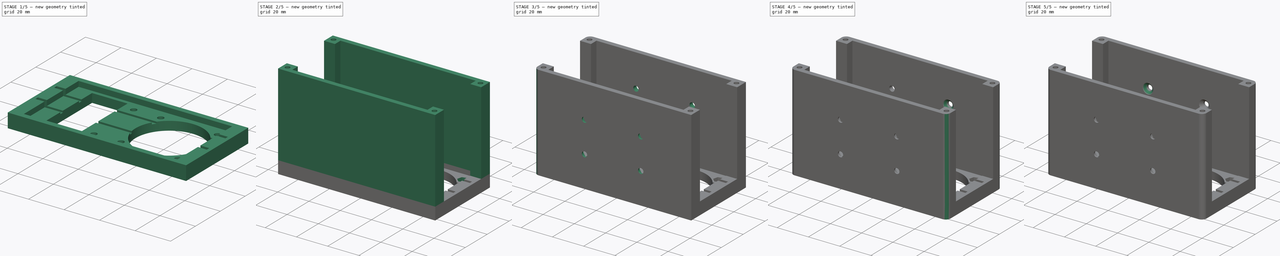
[diagram: build sequence overview — one tinted view per stage of 5, left to right]
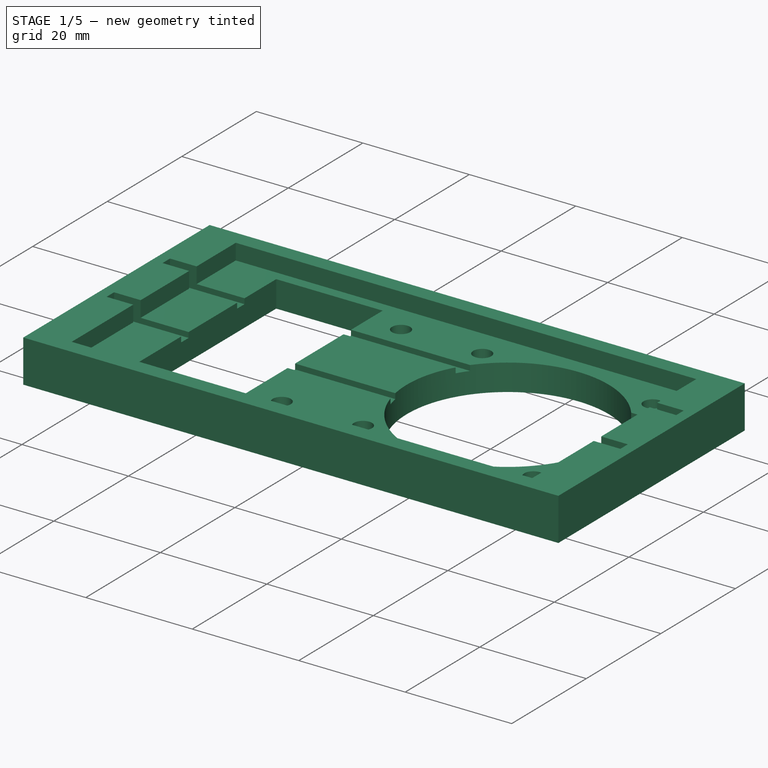
[diagram: stage 1 of 5 — iso view after this stage's code; geometry added in this stage tinted green]
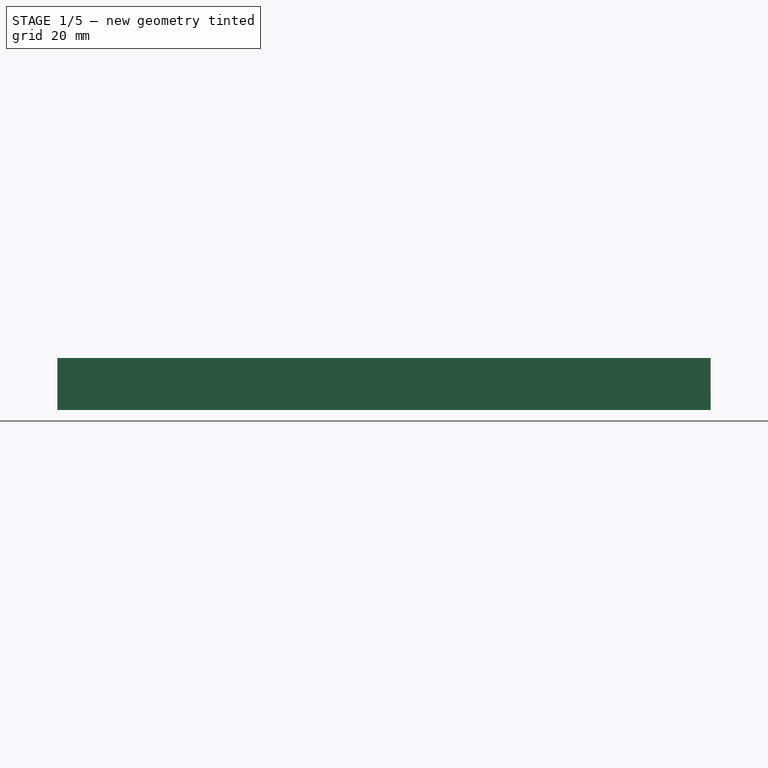
[diagram: stage 1 of 5 — front view after this stage's code; geometry added in this stage tinted green]
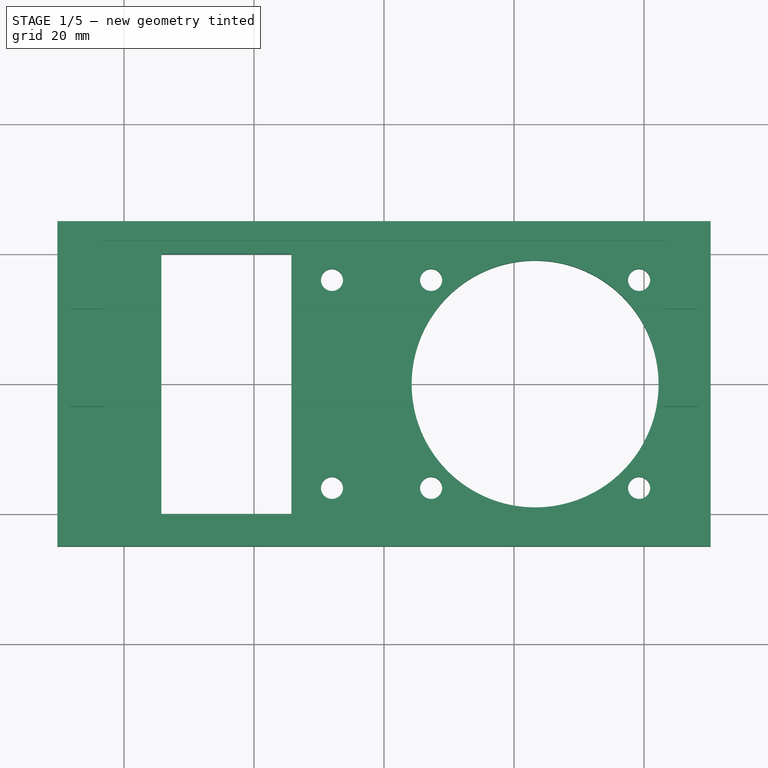
[diagram: stage 1 of 5 — top view after this stage's code; geometry added in this stage tinted green]
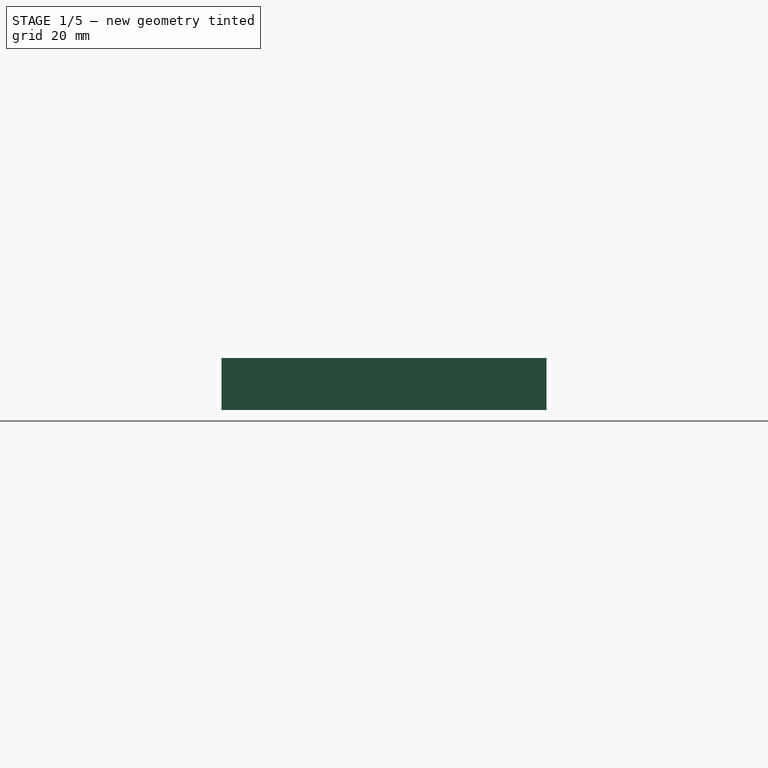
[diagram: stage 1 of 5 — right view after this stage's code; geometry added in this stage tinted green]
FCSTD DOCUMENT  (FreeCAD 0.16R6706 (Git))
Label: MotorDriverMount
License: All rights reserved
LicenseURL: http://en.wikipedia.org/wiki/All_rights_reserved
objects: Sketcher::SketchObject×9, PartDesign::Pocket×6, PartDesign::Fillet×4, PartDesign::Chamfer×4, PartDesign::Pad×2
note: 33 computed .brp shape members not serialized (recipe doc carries the construction recipe); baked Part::Feature solids carry a one-line shape summary decoded from their .brp

FEATURE [Sketcher::SketchObject] Sketch
  sketch-geometry (29):
    g0: LineSegment StartX=-50.25 StartY=25 StartZ=0 EndX=50.25 EndY=25 EndZ=0
    g1: LineSegment StartX=50.25 StartY=25 StartZ=0 EndX=50.25 EndY=-25 EndZ=0
    g2: LineSegment StartX=50.25 StartY=-25 StartZ=0 EndX=-50.25 EndY=-25 EndZ=0
    g3: LineSegment StartX=-50.25 StartY=-25 StartZ=0 EndX=-50.25 EndY=25 EndZ=0
    g4: LineSegment [constr] StartX=-48.25 StartY=12 StartZ=0 EndX=48.25 EndY=12 EndZ=0
    g5: LineSegment [constr] StartX=48.25 StartY=12 StartZ=0 EndX=48.25 EndY=10 EndZ=0
    g6: LineSegment [constr] StartX=48.25 StartY=10 StartZ=0 EndX=-48.25 EndY=10 EndZ=0
    g7: LineSegment [constr] StartX=-48.25 StartY=10 StartZ=0 EndX=-48.25 EndY=12 EndZ=0
    g8: LineSegment [constr] StartX=-48.25 StartY=-8 StartZ=0 EndX=48.25 EndY=-8 EndZ=0
    g9: LineSegment [constr] StartX=48.25 StartY=-8 StartZ=0 EndX=48.25 EndY=-10 EndZ=0
    g10: LineSegment [constr] StartX=48.25 StartY=-10 StartZ=0 EndX=-48.25 EndY=-10 EndZ=0
    g11: LineSegment [constr] StartX=-48.25 StartY=-10 StartZ=0 EndX=-48.25 EndY=-8 EndZ=0
    g12: LineSegment [constr] StartX=-48.25 StartY=10 StartZ=0 EndX=-48.25 EndY=-8 EndZ=0
    g13: LineSegment [constr] StartX=48.25 StartY=10 StartZ=0 EndX=48.25 EndY=-8 EndZ=0
    g14: Circle CenterX=23.25 CenterY=0 CenterZ=0 NormalX=0 NormalY=0 NormalZ=1 Radius=19
    g15: LineSegment StartX=-34.25 StartY=20 StartZ=0 EndX=-14.25 EndY=20 EndZ=0
    g16: LineSegment StartX=-14.25 StartY=20 StartZ=0 EndX=-14.25 EndY=-20 EndZ=0
    g17: LineSegment StartX=-14.25 StartY=-20 StartZ=0 EndX=-34.25 EndY=-20 EndZ=0
    g18: LineSegment StartX=-34.25 StartY=-20 StartZ=0 EndX=-34.25 EndY=20 EndZ=0
    g19: LineSegment [constr] StartX=7.25 StartY=16 StartZ=0 EndX=39.25 EndY=16 EndZ=0
    g20: LineSegment [constr] StartX=39.25 StartY=16 StartZ=0 EndX=39.25 EndY=-16 EndZ=0
    g21: LineSegment [constr] StartX=39.25 StartY=-16 StartZ=0 EndX=7.25 EndY=-16 EndZ=0
    g22: LineSegment [constr] StartX=7.25 StartY=-16 StartZ=0 EndX=7.25 EndY=16 EndZ=0
    g23: Circle CenterX=7.25 CenterY=16 CenterZ=0 NormalX=0 NormalY=0 NormalZ=1 Radius=1.7
    g24: Circle CenterX=39.25 CenterY=16 CenterZ=0 NormalX=0 NormalY=0 NormalZ=1 Radius=1.7
    g25: Circle CenterX=39.25 CenterY=-16 CenterZ=0 NormalX=0 NormalY=0 NormalZ=1 Radius=1.7
    g26: Circle CenterX=7.25 CenterY=-16 CenterZ=0 NormalX=0 NormalY=0 NormalZ=1 Radius=1.7
    g27: Circle CenterX=-8 CenterY=16 CenterZ=0 NormalX=0 NormalY=0 NormalZ=1 Radius=1.7
    g28: Circle CenterX=-8 CenterY=-16 CenterZ=0 NormalX=0 NormalY=0 NormalZ=1 Radius=1.7
  constraints (79):
    c: Coincident(g0,g1)
    c: Coincident(g1,g2)
    c: Coincident(g2,g3)
    c: Coincident(g3,g0)
    c: Horizontal(g0)
    c: Horizontal(g2)
    c: Vertical(g1)
    c: Vertical(g3)
    c: Coincident(g4,g5)
    c: Coincident(g5,g6)
    c: Coincident(g6,g7)
    c: Coincident(g7,g4)
    c: Horizontal(g4)
    c: Horizontal(g6)
    c: Vertical(g5)
    c: Vertical(g7)
    c: Coincident(g8,g9)
    c: Coincident(g9,g10)
    c: Coincident(g10,g11)
    c: Coincident(g11,g8)
    c: Horizontal(g8)
    c: Horizontal(g10)
    c: Vertical(g9)
    c: Vertical(g11)
    c: Symmetric(g0,g2,g-1)
    c: DistanceY(g1,g0) = 50
    c: Symmetric(g4,g4,g-2)
    c: DistanceX(g4,g4) = 96.5
    c: DistanceX(g4,g0) = 2
    c: Coincident(g12,g6)
    c: Vertical(g12)
    c: Coincident(g8,g12)
    c: Coincident(g13,g5)
    c: Coincident(g13,g8)
    c: Vertical(g13)
    c: DistanceY(g6,g4) = 2
    c: DistanceY(g10,g8) = 2
    c: DistanceY(g8,g5) = 18
    c: PointOnObject(g14,g-1)
    c: Radius(g14) = 19
    c: DistanceX(g14,g0) = 27
    c: Coincident(g15,g16)
    c: Coincident(g16,g17)
    c: Coincident(g17,g18)
    c: Coincident(g18,g15)
    c: Horizontal(g15)
    c: Horizontal(g17)
    c: Vertical(g16)
    c: Vertical(g18)
    c: Symmetric(g15,g17,g-1)
    c: DistanceX(g4,g15) = 14
    c: DistanceY(g17,g15) = 40
    c: DistanceX(g15,g15) = 20
    c: Coincident(g19,g20)
    c: Coincident(g20,g21)
    c: Coincident(g21,g22)
    c: Coincident(g22,g19)
    c: Horizontal(g19)
    c: Horizontal(g21)
    c: Vertical(g20)
    c: Vertical(g22)
    c: Symmetric(g20,g19,g14)
    c: DistanceX(g19,g19) = 32
    c: Coincident(g23,g19)
    c: Coincident(g24,g19)
    c: Radius(g26) = 1.7
    c: Equal(g26,g25)
    c: Equal(g26,g24)
    c: Equal(g26,g23)
    c: Coincident(g26,g21)
    c: Coincident(g25,g20)
    c: Equal(g22,g19)
    c: DistanceX(g2,g1) = 100.5
    c: DistanceY(g-1,g6) = 10
    c: Radius(g28) = 1.7
    c: Equal(g28,g27)
    c: Symmetric(g28,g27,g-1)
    c: DistanceY(g28,g27) = 32
    c: DistanceX(g27,g-1) = 8
FEATURE [PartDesign::Pad] Pad
  Length = 8
  Length2 = 100
  Sketch = -> Sketch
  Type = 0
FEATURE [Sketcher::SketchObject] Sketch001
  Placement = pos=(0,0,8) rot=(0,0,1;0rad)
  Support = -> Pad [Face17]
  sketch-geometry (4):
    g0: LineSegment StartX=-43.25 StartY=22 StartZ=0 EndX=43.25 EndY=22 EndZ=0
    g1: LineSegment StartX=43.25 StartY=22 StartZ=0 EndX=43.25 EndY=-22 EndZ=0
    g2: LineSegment StartX=43.25 StartY=-22 StartZ=0 EndX=-43.25 EndY=-22 EndZ=0
    g3: LineSegment StartX=-43.25 StartY=-22 StartZ=0 EndX=-43.25 EndY=22 EndZ=0
  constraints (11):
    c: Coincident(g0,g1)
    c: Coincident(g1,g2)
    c: Coincident(g2,g3)
    c: Coincident(g3,g0)
    c: Horizontal(g0)
    c: Horizontal(g2)
    c: Vertical(g1)
    c: Vertical(g3)
    c: Symmetric(g0,g1,g-1)
    c: DistanceY(g2,g0) = 44
    c: DistanceX(g0,g0) = 86.5
FEATURE [PartDesign::Pocket] Pocket
  Length = 3
  Sketch = -> Sketch001
  Type = 0
FEATURE [Sketcher::SketchObject] Sketch002  label="BoardSlots"
  Placement = pos=(0,0,8) rot=(0,0,1;0rad)
  Support = -> Pocket [Face5]
  sketch-geometry (10):
    g0: LineSegment StartX=-48.25 StartY=11.5 StartZ=0 EndX=48.25 EndY=11.5 EndZ=0
    g1: LineSegment StartX=48.25 StartY=11.5 StartZ=0 EndX=48.25 EndY=9.5 EndZ=0
    g2: LineSegment StartX=48.25 StartY=9.5 StartZ=0 EndX=-48.25 EndY=9.5 EndZ=0
    g3: LineSegment StartX=-48.25 StartY=9.5 StartZ=0 EndX=-48.25 EndY=11.5 EndZ=0
    g4: LineSegment StartX=-48.25 StartY=-3.5 StartZ=0 EndX=48.25 EndY=-3.5 EndZ=0
    g5: LineSegment StartX=48.25 StartY=-3.5 StartZ=0 EndX=48.25 EndY=-5.5 EndZ=0
    g6: LineSegment StartX=48.25 StartY=-5.5 StartZ=0 EndX=-48.25 EndY=-5.5 EndZ=0
    g7: LineSegment StartX=-48.25 StartY=-5.5 StartZ=0 EndX=-48.25 EndY=-3.5 EndZ=0
    g8: LineSegment [constr] StartX=-48.25 StartY=9.5 StartZ=0 EndX=-48.25 EndY=-3.5 EndZ=0
    g9: LineSegment [constr] StartX=48.25 StartY=9.5 StartZ=0 EndX=48.25 EndY=-3.5 EndZ=0
  constraints (28):
    c: Coincident(g0,g1)
    c: Coincident(g1,g2)
    c: Coincident(g2,g3)
    c: Coincident(g3,g0)
    c: Horizontal(g0)
    c: Horizontal(g2)
    c: Vertical(g1)
    c: Vertical(g3)
    c: Coincident(g4,g5)
    c: Coincident(g5,g6)
    c: Coincident(g6,g7)
    c: Coincident(g7,g4)
    c: Horizontal(g4)
    c: Horizontal(g6)
    c: Vertical(g5)
    c: Vertical(g7)
    c: Symmetric(g0,g0,g-2)
    c: DistanceY(g1,g0) = 2
    c: DistanceX(g0,g0) = 96.5
    c: DistanceY(g5,g4) = 2
    c: Coincident(g8,g2)
    c: Coincident(g8,g4)
    c: Vertical(g8)
    c: Coincident(g9,g1)
    c: Coincident(g9,g4)
    c: Vertical(g9)
    c: DistanceY(g4,g0) = 15
    c: DistanceY(g-1,g2) = 9.5
FEATURE [PartDesign::Pocket] Pocket001
  Length = 4
  Sketch = -> Sketch002
  Type = 0
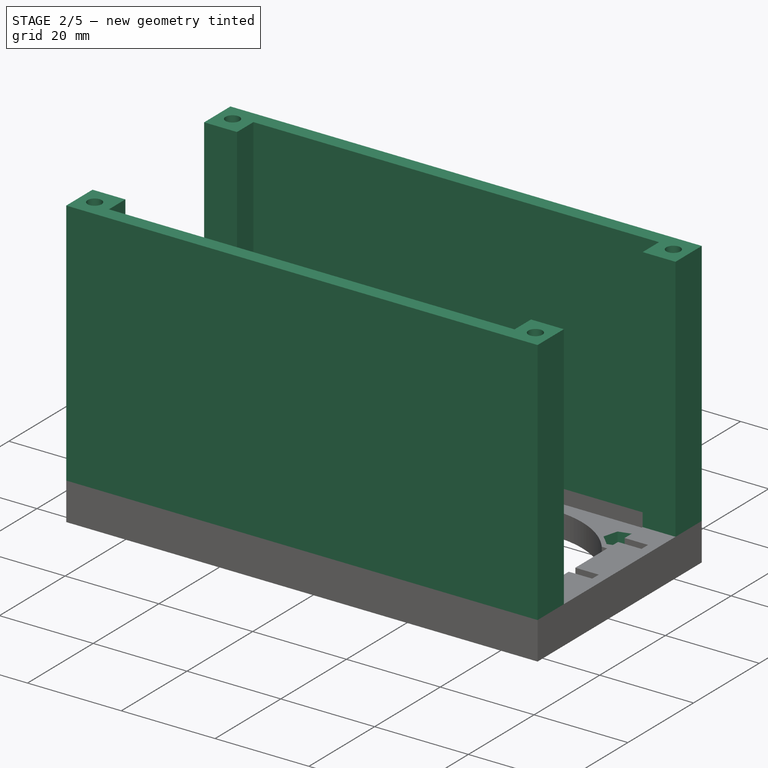
[diagram: stage 2 of 5 — iso view after this stage's code; geometry added in this stage tinted green]
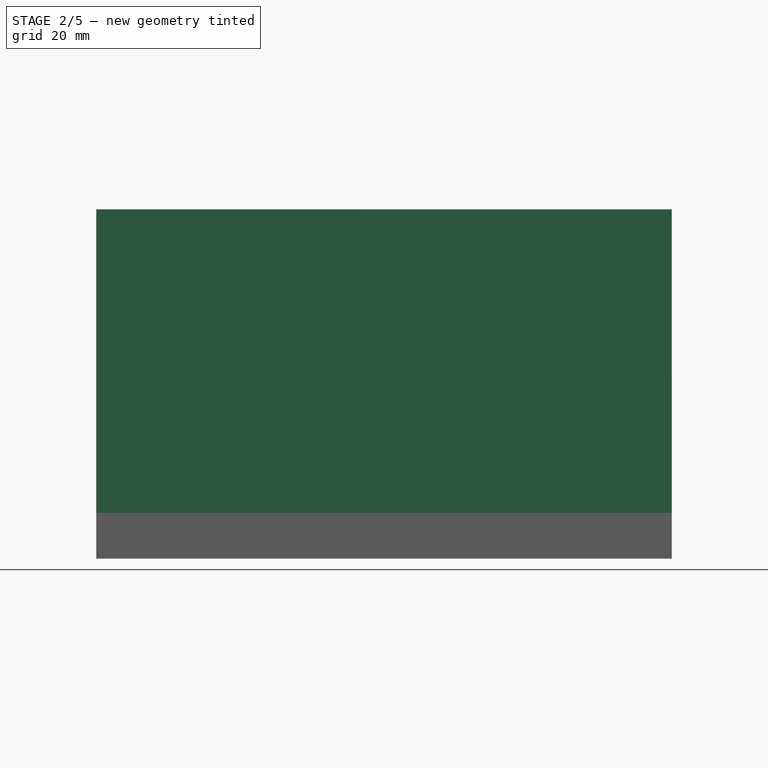
[diagram: stage 2 of 5 — front view after this stage's code; geometry added in this stage tinted green]
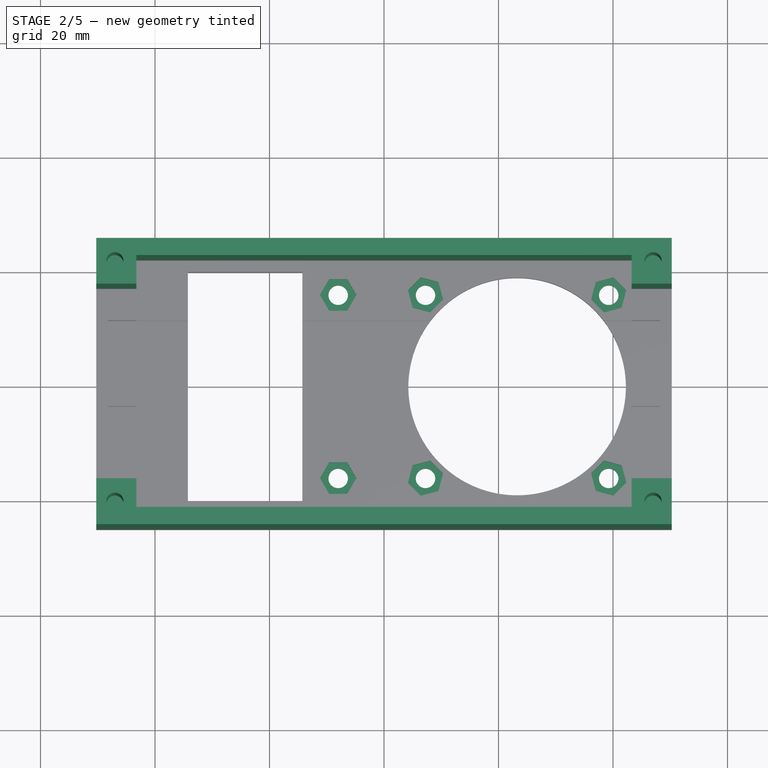
[diagram: stage 2 of 5 — top view after this stage's code; geometry added in this stage tinted green]
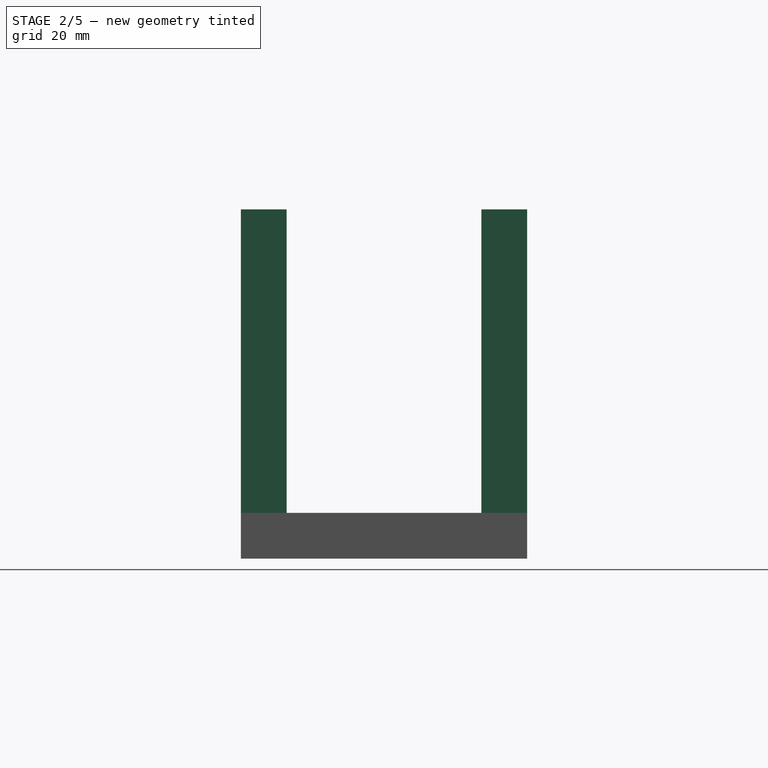
[diagram: stage 2 of 5 — right view after this stage's code; geometry added in this stage tinted green]
FEATURE [Sketcher::SketchObject] Sketch003
  Placement = pos=(0,0,5) rot=(0,0,1;0rad)
  Support = -> Pocket001 [Face38]
  sketch-geometry (47):
    g0: LineSegment [constr] StartX=7.25 StartY=16 StartZ=0 EndX=39.25 EndY=16 EndZ=0
    g1: LineSegment [constr] StartX=39.25 StartY=16 StartZ=0 EndX=39.25 EndY=-16 EndZ=0
    g2: LineSegment [constr] StartX=39.25 StartY=-16 StartZ=0 EndX=7.25 EndY=-16 EndZ=0
    g3: LineSegment [constr] StartX=7.25 StartY=-16 StartZ=0 EndX=7.25 EndY=16 EndZ=0
    g4: LineSegment StartX=6.42814 StartY=19.0672 StartZ=0 EndX=4.18277 EndY=16.8219 EndZ=0
    g5: LineSegment StartX=4.18277 StartY=16.8219 StartZ=0 EndX=5.00463 EndY=13.7546 EndZ=0
    g6: LineSegment StartX=5.00463 StartY=13.7546 StartZ=0 EndX=8.07186 EndY=12.9328 EndZ=0
    g7: LineSegment StartX=8.07186 StartY=12.9328 StartZ=0 EndX=10.3172 EndY=15.1781 EndZ=0
    g8: LineSegment StartX=10.3172 StartY=15.1781 StartZ=0 EndX=9.49537 EndY=18.2454 EndZ=0
    g9: LineSegment StartX=9.49537 StartY=18.2454 StartZ=0 EndX=6.42814 EndY=19.0672 EndZ=0
    g10: Circle [constr] CenterX=7.25 CenterY=16 CenterZ=0 NormalX=0 NormalY=0 NormalZ=1 Radius=3.17543
    g11: LineSegment StartX=40.0719 StartY=19.0672 StartZ=0 EndX=37.0046 EndY=18.2454 EndZ=0
    g12: LineSegment StartX=37.0046 StartY=18.2454 StartZ=0 EndX=36.1828 EndY=15.1781 EndZ=0
    g13: LineSegment StartX=36.1828 StartY=15.1781 StartZ=0 EndX=38.4281 EndY=12.9328 EndZ=0
    g14: LineSegment StartX=38.4281 StartY=12.9328 StartZ=0 EndX=41.4954 EndY=13.7546 EndZ=0
    g15: LineSegment StartX=41.4954 StartY=13.7546 StartZ=0 EndX=42.3172 EndY=16.8219 EndZ=0
    g16: LineSegment StartX=42.3172 StartY=16.8219 StartZ=0 EndX=40.0719 EndY=19.0672 EndZ=0
    g17: Circle [constr] CenterX=39.25 CenterY=16 CenterZ=0 NormalX=0 NormalY=0 NormalZ=1 Radius=3.17543
    g18: LineSegment StartX=5.00463 StartY=-13.7546 StartZ=0 EndX=4.18277 EndY=-16.8219 EndZ=0
    g19: LineSegment StartX=4.18277 StartY=-16.8219 StartZ=0 EndX=6.42814 EndY=-19.0672 EndZ=0
    g20: LineSegment StartX=6.42814 StartY=-19.0672 StartZ=0 EndX=9.49537 EndY=-18.2454 EndZ=0
    g21: LineSegment StartX=9.49537 StartY=-18.2454 StartZ=0 EndX=10.3172 EndY=-15.1781 EndZ=0
    g22: LineSegment StartX=10.3172 StartY=-15.1781 StartZ=0 EndX=8.07186 EndY=-12.9328 EndZ=0
    g23: LineSegment StartX=8.07186 StartY=-12.9328 StartZ=0 EndX=5.00463 EndY=-13.7546 EndZ=0
    g24: Circle [constr] CenterX=7.25 CenterY=-16 CenterZ=0 NormalX=0 NormalY=0 NormalZ=1 Radius=3.17543
    g25: LineSegment StartX=36.1828 StartY=-15.1781 StartZ=0 EndX=37.0046 EndY=-18.2454 EndZ=0
    g26: LineSegment StartX=37.0046 StartY=-18.2454 StartZ=0 EndX=40.0719 EndY=-19.0672 EndZ=0
    g27: LineSegment StartX=40.0719 StartY=-19.0672 StartZ=0 EndX=42.3172 EndY=-16.8219 EndZ=0
    g28: LineSegment StartX=42.3172 StartY=-16.8219 StartZ=0 EndX=41.4954 EndY=-13.7546 EndZ=0
    g29: LineSegment StartX=41.4954 StartY=-13.7546 StartZ=0 EndX=38.4281 EndY=-12.9328 EndZ=0
    g30: LineSegment StartX=38.4281 StartY=-12.9328 StartZ=0 EndX=36.1828 EndY=-15.1781 EndZ=0
    g31: Circle [constr] CenterX=39.25 CenterY=-16 CenterZ=0 NormalX=0 NormalY=0 NormalZ=1 Radius=3.17543
    g32: LineSegment [constr] StartX=7.25 StartY=16 StartZ=0 EndX=39.25 EndY=-16 EndZ=0
    g33: LineSegment StartX=-9.58771 StartY=18.75 StartZ=0 EndX=-11.1754 EndY=16 EndZ=0
    g34: LineSegment StartX=-11.1754 StartY=16 StartZ=0 EndX=-9.58771 EndY=13.25 EndZ=0
    g35: LineSegment StartX=-9.58771 StartY=13.25 StartZ=0 EndX=-6.41229 EndY=13.25 EndZ=0
    g36: LineSegment StartX=-6.41229 StartY=13.25 StartZ=0 EndX=-4.82457 EndY=16 EndZ=0
    g37: LineSegment StartX=-4.82457 StartY=16 StartZ=0 EndX=-6.41229 EndY=18.75 EndZ=0
    g38: LineSegment StartX=-6.41229 StartY=18.75 StartZ=0 EndX=-9.58771 EndY=18.75 EndZ=0
    g39: Circle [constr] CenterX=-8 CenterY=16 CenterZ=0 NormalX=0 NormalY=0 NormalZ=1 Radius=3.17543
    g40: LineSegment StartX=-9.58771 StartY=-13.25 StartZ=0 EndX=-11.1754 EndY=-16 EndZ=0
    g41: LineSegment StartX=-11.1754 StartY=-16 StartZ=0 EndX=-9.58771 EndY=-18.75 EndZ=0
    g42: LineSegment StartX=-9.58771 StartY=-18.75 StartZ=0 EndX=-6.41229 EndY=-18.75 EndZ=0
    g43: LineSegment StartX=-6.41229 StartY=-18.75 StartZ=0 EndX=-4.82457 EndY=-16 EndZ=0
    g44: LineSegment StartX=-4.82457 StartY=-16 StartZ=0 EndX=-6.41229 EndY=-13.25 EndZ=0
    g45: LineSegment StartX=-6.41229 StartY=-13.25 StartZ=0 EndX=-9.58771 EndY=-13.25 EndZ=0
    g46: Circle [constr] CenterX=-8 CenterY=-16 CenterZ=0 NormalX=0 NormalY=0 NormalZ=1 Radius=3.17543
  constraints (111):
    c: Coincident(g0,g1)
    c: Coincident(g1,g2)
    c: Coincident(g2,g3)
    c: Coincident(g3,g0)
    c: Horizontal(g0)
    c: Horizontal(g2)
    c: Vertical(g1)
    c: Vertical(g3)
    c: Symmetric(g2,g0,g-1)
    c: DistanceY(g1,g0) = 32
    c: Equal(g1,g0)
    c: Coincident(g4,g5)
    c: Coincident(g5,g6)
    c: Coincident(g6,g7)
    c: Coincident(g7,g8)
    c: Coincident(g8,g9)
    c: Coincident(g9,g4)
    c: Equal(g4, g5-g9) x5
    c: PointOnObject(g4,g10)
    c: PointOnObject(g5,g10)
    c: PointOnObject(g6,g10)
    c: PointOnObject(g7,g10)
    c: PointOnObject(g8,g10)
    c: PointOnObject(g9,g10)
    c: Coincident(g10,g0)
    c: Coincident(g11,g12)
    c: Coincident(g12,g13)
    c: Coincident(g13,g14)
    c: Coincident(g14,g15)
    c: Coincident(g15,g16)
    c: Coincident(g16,g11)
    c: Equal(g11, g12-g16) x5
    c: PointOnObject(g11,g17)
    c: PointOnObject(g12,g17)
    c: PointOnObject(g13,g17)
    c: PointOnObject(g14,g17)
    c: PointOnObject(g15,g17)
    c: PointOnObject(g16,g17)
    c: Coincident(g17,g0)
    c: Coincident(g18,g19)
    c: Coincident(g19,g20)
    c: Coincident(g20,g21)
    c: Coincident(g21,g22)
    c: Coincident(g22,g23)
    c: Coincident(g23,g18)
    c: Equal(g18, g19-g23) x5
    c: PointOnObject(g18,g24)
    c: PointOnObject(g19,g24)
    c: PointOnObject(g20,g24)
    c: PointOnObject(g21,g24)
    c: PointOnObject(g22,g24)
    c: PointOnObject(g23,g24)
    c: Coincident(g24,g2)
    c: Coincident(g25,g26)
    c: Coincident(g26,g27)
    c: Coincident(g27,g28)
    c: Coincident(g28,g29)
    c: Coincident(g29,g30)
    c: Coincident(g30,g25)
    c: Equal(g25, g26-g30) x5
    c: PointOnObject(g25,g31)
    c: PointOnObject(g26,g31)
    c: PointOnObject(g27,g31)
    c: PointOnObject(g28,g31)
    c: PointOnObject(g29,g31)
    c: PointOnObject(g30,g31)
    c: Coincident(g31,g1)
    c: Distance(g5,g4) = 5.5
    c: Equal(g10,g17)
    c: Equal(g17,g31)
    c: Equal(g31,g24)
    c: Coincident(g1,g32)
    c: Perpendicular(g32,g30)
    c: Perpendicular(g32,g7)
    c: Parallel(g22,g32)
    c: Parallel(g32,g13)
    c: Coincident(g32,g0)
    c: DistanceX(g-1,g0) = 7.25
    c: Coincident(g33,g34)
    c: Coincident(g34,g35)
    c: Coincident(g35,g36)
    c: Coincident(g36,g37)
    c: Coincident(g37,g38)
    c: Coincident(g38,g33)
    c: Equal(g33, g34-g38) x5
    c: PointOnObject(g33,g39)
    c: PointOnObject(g34,g39)
    c: PointOnObject(g35,g39)
    c: PointOnObject(g36,g39)
    c: PointOnObject(g37,g39)
    c: PointOnObject(g38,g39)
    c: Coincident(g40,g41)
    c: Coincident(g41,g42)
    c: Coincident(g42,g43)
    c: Coincident(g43,g44)
    c: Coincident(g44,g45)
    c: Coincident(g45,g40)
    c: Equal(g40, g41-g45) x5
    c: PointOnObject(g40,g46)
    c: PointOnObject(g41,g46)
    c: PointOnObject(g42,g46)
    c: PointOnObject(g43,g46)
    c: PointOnObject(g44,g46)
    c: PointOnObject(g45,g46)
    c: Symmetric(g46,g39,g-1)
    c: Horizontal(g35)
    c: Horizontal(g45)
    c: DistanceX(g39,g-1) = 8
    c: Equal(g39,g46)
    c: Equal(g46,g10)
    c: DistanceY(g46,g39) = 32
FEATURE [PartDesign::Pocket] Pocket002
  Length = 2.5
  Sketch = -> Sketch003
  Type = 0
FEATURE [Sketcher::SketchObject] Sketch004
  Placement = pos=(0,0,8) rot=(0,0,1;0rad)
  Support = -> Pocket002 [Face5]
  sketch-geometry (18):
    g0: LineSegment StartX=-50.25 StartY=25 StartZ=0 EndX=50.25 EndY=25 EndZ=0
    g1: LineSegment StartX=50.25 StartY=25 StartZ=0 EndX=50.25 EndY=17 EndZ=0
    g2: LineSegment StartX=-50.25 StartY=17 StartZ=0 EndX=-50.25 EndY=25 EndZ=0
    g3: LineSegment StartX=50.25 StartY=-17 StartZ=0 EndX=50.25 EndY=-25 EndZ=0
    g4: LineSegment StartX=50.25 StartY=-25 StartZ=0 EndX=-50.25 EndY=-25 EndZ=0
    g5: LineSegment StartX=-50.25 StartY=-25 StartZ=0 EndX=-50.25 EndY=-17 EndZ=0
    g6: LineSegment [constr] StartX=-50.25 StartY=17 StartZ=0 EndX=-50.25 EndY=-17 EndZ=0
    g7: LineSegment [constr] StartX=50.25 StartY=17 StartZ=0 EndX=50.25 EndY=-17 EndZ=0
    g8: LineSegment StartX=-50.25 StartY=17 StartZ=0 EndX=-43.25 EndY=17 EndZ=0
    g9: LineSegment StartX=-43.25 StartY=17 StartZ=0 EndX=-43.25 EndY=22 EndZ=0
    g10: LineSegment StartX=-43.25 StartY=22 StartZ=0 EndX=43.25 EndY=22 EndZ=0
    g11: LineSegment StartX=50.25 StartY=17 StartZ=0 EndX=43.25 EndY=17 EndZ=0
    g12: LineSegment StartX=43.25 StartY=22 StartZ=0 EndX=43.25 EndY=17 EndZ=0
    g13: LineSegment StartX=-50.25 StartY=-17 StartZ=0 EndX=-43.25 EndY=-17 EndZ=0
    g14: LineSegment StartX=-43.25 StartY=-17 StartZ=0 EndX=-43.25 EndY=-22 EndZ=0
    g15: LineSegment StartX=-43.25 StartY=-22 StartZ=0 EndX=43.25 EndY=-22 EndZ=0
    g16: LineSegment StartX=43.25 StartY=-22 StartZ=0 EndX=43.25 EndY=-17 EndZ=0
    g17: LineSegment StartX=43.25 StartY=-17 StartZ=0 EndX=50.25 EndY=-17 EndZ=0
  constraints (48):
    c: Coincident(g0,g1)
    c: Coincident(g2,g0)
    c: Horizontal(g0)
    c: Vertical(g1)
    c: Vertical(g2)
    c: Coincident(g3,g4)
    c: Coincident(g4,g5)
    c: Horizontal(g4)
    c: Vertical(g3)
    c: Vertical(g5)
    c: Vertical(g6)
    c: Coincident(g7,g1)
    c: Vertical(g7)
    c: Equal(g5,g2)
    c: DistanceX(g0,g0) = 100.5
    c: Symmetric(g4,g0,g-1)
    c: DistanceY(g3,g0) = 50
    c: Coincident(g6,g5)
    c: Coincident(g2,g6)
    c: Coincident(g7,g3)
    c: Horizontal(g8)
    c: Coincident(g9,g8)
    c: Vertical(g9)
    c: Coincident(g10,g9)
    c: Horizontal(g10)
    c: Coincident(g11,g1)
    c: Horizontal(g11)
    c: Coincident(g12,g11)
    c: Vertical(g12)
    c: Coincident(g12,g10)
    c: DistanceY(g9,g0) = 3
    c: DistanceX(g2,g8) = 7
    c: DistanceY(g2,g0) = 8
    c: Symmetric(g11,g8,g-2)
    c: Coincident(g5,g13)
    c: Horizontal(g13)
    c: Coincident(g13,g14)
    c: Vertical(g14)
    c: Coincident(g14,g15)
    c: Horizontal(g15)
    c: Coincident(g15,g16)
    c: Vertical(g16)
    c: Coincident(g16,g17)
    c: Horizontal(g17)
    c: Coincident(g3,g17)
    c: Symmetric(g16,g11,g-1)
    c: Symmetric(g14,g9,g-1)
    c: Coincident(g8,g2)
FEATURE [PartDesign::Pad] Pad001
  Length = 53
  Length2 = 100
  Sketch = -> Sketch004
  Type = 0
FEATURE [Sketcher::SketchObject] Sketch005
  Placement = pos=(0,0,61) rot=(0,0,1;0rad)
  Support = -> Pad001 [Face54]
  sketch-geometry (8):
    g0: Circle CenterX=-47 CenterY=21 CenterZ=0 NormalX=0 NormalY=0 NormalZ=1 Radius=1.5
    g1: LineSegment [constr] StartX=-47 StartY=21 StartZ=0 EndX=47 EndY=21 EndZ=0
    g2: LineSegment [constr] StartX=47 StartY=21 StartZ=0 EndX=47 EndY=-21 EndZ=0
    g3: LineSegment [constr] StartX=47 StartY=-21 StartZ=0 EndX=-47 EndY=-21 EndZ=0
    g4: LineSegment [constr] StartX=-47 StartY=-21 StartZ=0 EndX=-47 EndY=21 EndZ=0
    g5: Circle CenterX=47 CenterY=21 CenterZ=0 NormalX=0 NormalY=0 NormalZ=1 Radius=1.5
    g6: Circle CenterX=47 CenterY=-21 CenterZ=0 NormalX=0 NormalY=0 NormalZ=1 Radius=1.5
    g7: Circle CenterX=-47 CenterY=-21 CenterZ=0 NormalX=0 NormalY=0 NormalZ=1 Radius=1.5
  constraints (19):
    c: Coincident(g1,g2)
    c: Coincident(g2,g3)
    c: Coincident(g3,g4)
    c: Coincident(g4,g1)
    c: Horizontal(g1)
    c: Horizontal(g3)
    c: Vertical(g2)
    c: Vertical(g4)
    c: Coincident(g1,g0)
    c: Symmetric(g0,g2,g-1)
    c: Coincident(g5,g1)
    c: Coincident(g6,g2)
    c: Coincident(g7,g3)
    c: Radius(g5) = 1.5
    c: Equal(g5,g6)
    c: Equal(g5,g7)
    c: Equal(g5,g0)
    c: DistanceY(g3,g0) = 42
    c: DistanceX(g0,g1) = 94
FEATURE [PartDesign::Pocket] Pocket003
  Length = 30
  Sketch = -> Sketch005
  Type = 0
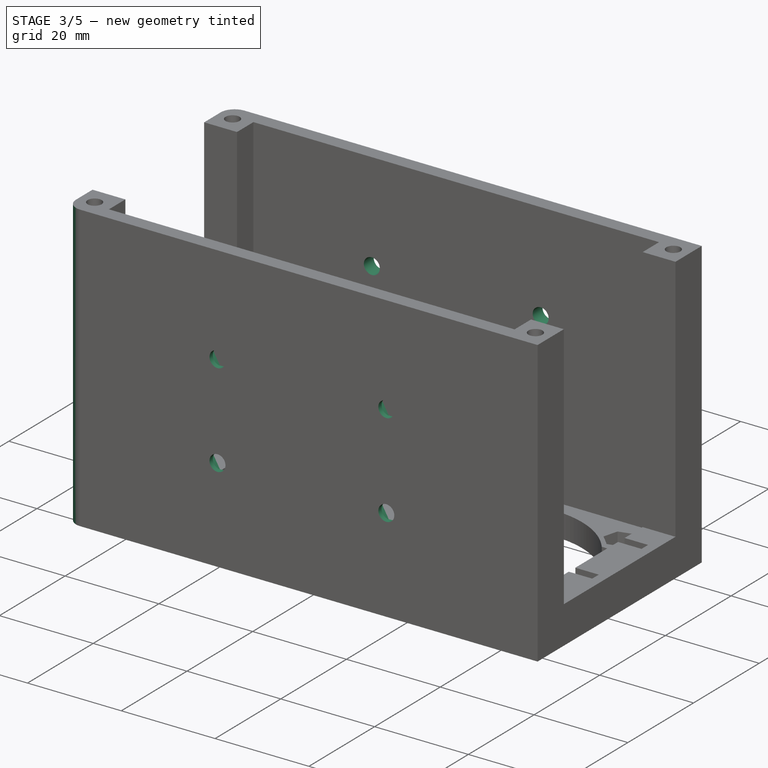
[diagram: stage 3 of 5 — iso view after this stage's code; geometry added in this stage tinted green]
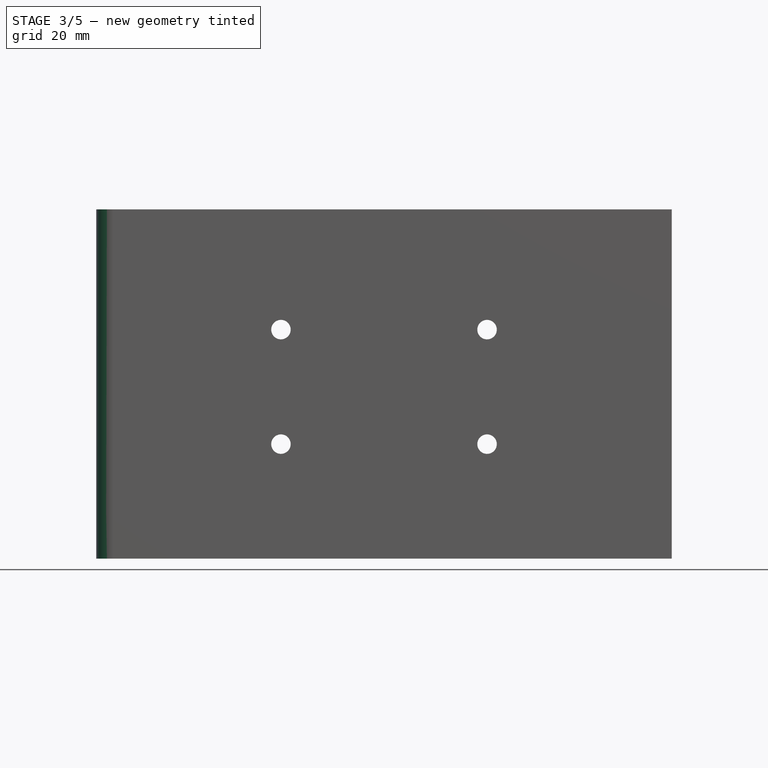
[diagram: stage 3 of 5 — front view after this stage's code; geometry added in this stage tinted green]
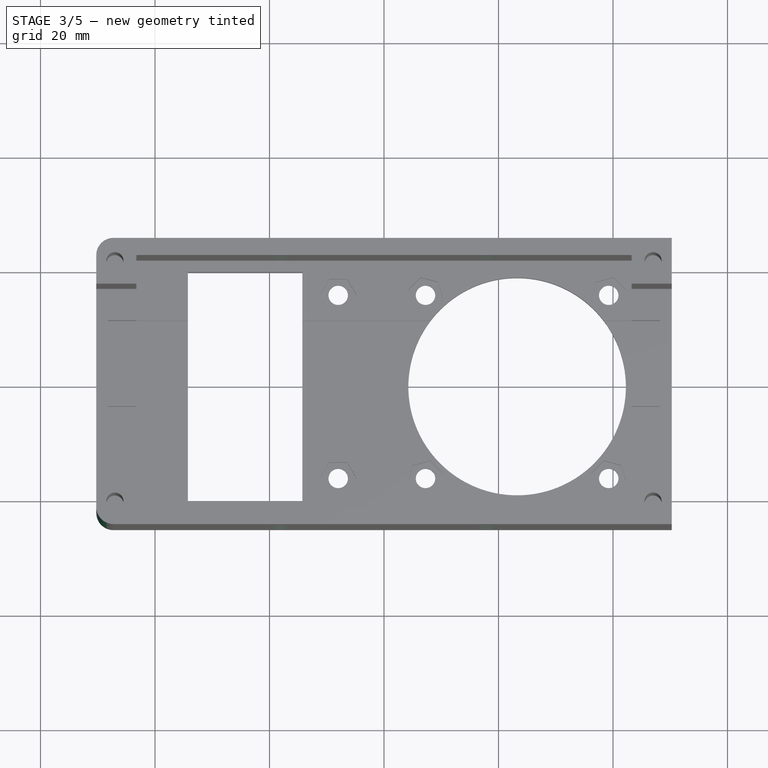
[diagram: stage 3 of 5 — top view after this stage's code; geometry added in this stage tinted green]
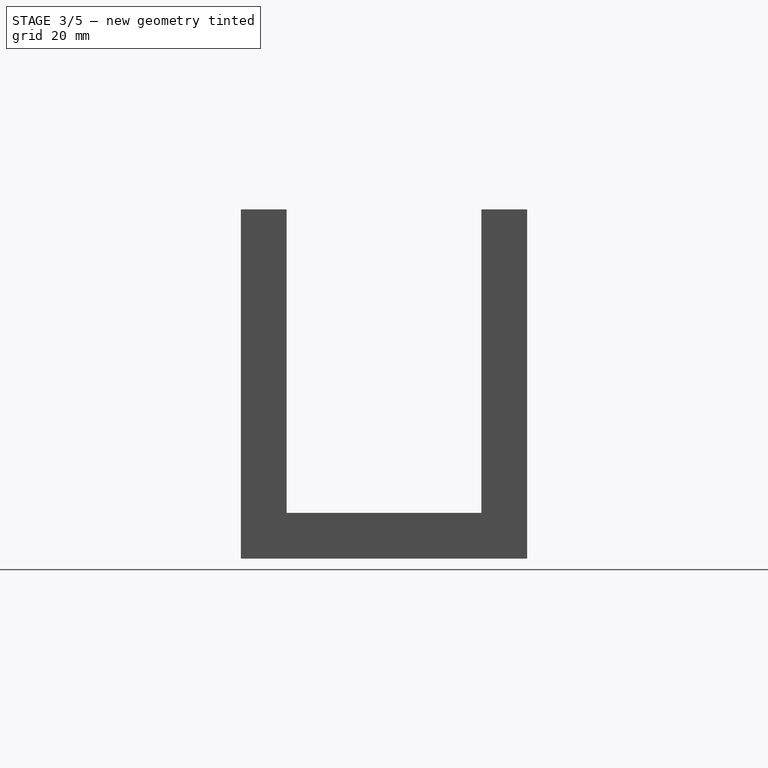
[diagram: stage 3 of 5 — right view after this stage's code; geometry added in this stage tinted green]
FEATURE [Sketcher::SketchObject] Sketch006
  Placement = pos=(0,25,0) rot=(0,0.707107,0.707107;3.14159rad)
  Support = -> Pocket003 [Face2]
  sketch-geometry (5):
    g0: Circle CenterX=-18 CenterY=20 CenterZ=0 NormalX=0 NormalY=0 NormalZ=1 Radius=1.7
    g1: Circle CenterX=18 CenterY=20 CenterZ=0 NormalX=0 NormalY=0 NormalZ=1 Radius=1.7
    g2: Circle CenterX=-18 CenterY=40 CenterZ=0 NormalX=0 NormalY=0 NormalZ=1 Radius=1.7
    g3: Circle CenterX=18 CenterY=40 CenterZ=0 NormalX=0 NormalY=0 NormalZ=1 Radius=1.7
    g4: LineSegment [constr] StartX=-18 StartY=40 StartZ=0 EndX=-18 EndY=20 EndZ=0
  constraints (12):
    c: Radius(g0) = 1.7
    c: Equal(g0,g1)
    c: Symmetric(g1,g0,g-2)
    c: DistanceX(g0,g1) = 36
    c: DistanceY(g-1,g1) = 20
    c: Equal(g2,g3)
    c: Equal(g3,g1)
    c: Symmetric(g2,g3,g-2)
    c: Coincident(g4,g2)
    c: Coincident(g4,g0)
    c: Vertical(g4)
    c: DistanceY(g0,g2) = 20
FEATURE [PartDesign::Pocket] Pocket004
  Length = 5
  Sketch = -> Sketch006
  Type = 1
FEATURE [Sketcher::SketchObject] Sketch007
  Placement = pos=(0,22,0) rot=(1,0,0;1.5708rad)
  Support = -> Pocket004 [Face97]
  sketch-geometry (29):
    g0: LineSegment StartX=-14.8246 StartY=20 StartZ=0 EndX=-16.4123 EndY=22.75 EndZ=0
    g1: LineSegment StartX=-16.4123 StartY=22.75 StartZ=0 EndX=-19.5877 EndY=22.75 EndZ=0
    g2: LineSegment StartX=-19.5877 StartY=22.75 StartZ=0 EndX=-21.1754 EndY=20 EndZ=0
    g3: LineSegment StartX=-21.1754 StartY=20 StartZ=0 EndX=-19.5877 EndY=17.25 EndZ=0
    g4: LineSegment StartX=-19.5877 StartY=17.25 StartZ=0 EndX=-16.4123 EndY=17.25 EndZ=0
    g5: LineSegment StartX=-16.4123 StartY=17.25 StartZ=0 EndX=-14.8246 EndY=20 EndZ=0
    g6: Circle [constr] CenterX=-18 CenterY=20 CenterZ=0 NormalX=0 NormalY=0 NormalZ=1 Radius=3.17543
    g7: LineSegment StartX=21.1754 StartY=20 StartZ=0 EndX=19.5877 EndY=22.75 EndZ=0
    g8: LineSegment StartX=19.5877 StartY=22.75 StartZ=0 EndX=16.4123 EndY=22.75 EndZ=0
    g9: LineSegment StartX=16.4123 StartY=22.75 StartZ=0 EndX=14.8246 EndY=20 EndZ=0
    g10: LineSegment StartX=14.8246 StartY=20 StartZ=0 EndX=16.4123 EndY=17.25 EndZ=0
    g11: LineSegment StartX=16.4123 StartY=17.25 StartZ=0 EndX=19.5877 EndY=17.25 EndZ=0
    g12: LineSegment StartX=19.5877 StartY=17.25 StartZ=0 EndX=21.1754 EndY=20 EndZ=0
    g13: Circle [constr] CenterX=18 CenterY=20 CenterZ=0 NormalX=0 NormalY=0 NormalZ=1 Radius=3.17543
    g14: LineSegment StartX=-16.4123 StartY=37.25 StartZ=0 EndX=-14.8246 EndY=40 EndZ=0
    g15: LineSegment StartX=-14.8246 StartY=40 StartZ=0 EndX=-16.4123 EndY=42.75 EndZ=0
    g16: LineSegment StartX=-16.4123 StartY=42.75 StartZ=0 EndX=-19.5877 EndY=42.75 EndZ=0
    g17: LineSegment StartX=-19.5877 StartY=42.75 StartZ=0 EndX=-21.1754 EndY=40 EndZ=0
    g18: LineSegment StartX=-21.1754 StartY=40 StartZ=0 EndX=-19.5877 EndY=37.25 EndZ=0
    g19: LineSegment StartX=-19.5877 StartY=37.25 StartZ=0 EndX=-16.4123 EndY=37.25 EndZ=0
    g20: Circle [constr] CenterX=-18 CenterY=40 CenterZ=0 NormalX=0 NormalY=0 NormalZ=1 Radius=3.17543
    g21: LineSegment StartX=21.1754 StartY=40 StartZ=0 EndX=19.5877 EndY=42.75 EndZ=0
    g22: LineSegment StartX=19.5877 StartY=42.75 StartZ=0 EndX=16.4123 EndY=42.75 EndZ=0
    g23: LineSegment StartX=16.4123 StartY=42.75 StartZ=0 EndX=14.8246 EndY=40 EndZ=0
    g24: LineSegment StartX=14.8246 StartY=40 StartZ=0 EndX=16.4123 EndY=37.25 EndZ=0
    g25: LineSegment StartX=16.4123 StartY=37.25 StartZ=0 EndX=19.5877 EndY=37.25 EndZ=0
    g26: LineSegment StartX=19.5877 StartY=37.25 StartZ=0 EndX=21.1754 EndY=40 EndZ=0
    g27: Circle [constr] CenterX=18 CenterY=40 CenterZ=0 NormalX=0 NormalY=0 NormalZ=1 Radius=3.17543
    g28: LineSegment [constr] StartX=-18 StartY=40 StartZ=0 EndX=-18 EndY=20 EndZ=0
  constraints (68):
    c: Coincident(g0,g1)
    c: Coincident(g1,g2)
    c: Coincident(g2,g3)
    c: Coincident(g3,g4)
    c: Coincident(g4,g5)
    c: Coincident(g5,g0)
    c: Equal(g0, g1-g5) x5
    c: PointOnObject(g0,g6)
    c: PointOnObject(g1,g6)
    c: PointOnObject(g2,g6)
    c: PointOnObject(g3,g6)
    c: PointOnObject(g4,g6)
    c: PointOnObject(g5,g6)
    c: Coincident(g7,g8)
    c: Coincident(g8,g9)
    c: Coincident(g9,g10)
    c: Coincident(g10,g11)
    c: Coincident(g11,g12)
    c: Coincident(g12,g7)
    c: Equal(g7, g8-g12) x5
    c: PointOnObject(g7,g13)
    c: PointOnObject(g8,g13)
    c: PointOnObject(g9,g13)
    c: PointOnObject(g10,g13)
    c: PointOnObject(g11,g13)
    c: PointOnObject(g12,g13)
    c: Symmetric(g13,g6,g-2)
    c: Equal(g6,g13)
    c: DistanceY(g-1,g13) = 20
    c: Parallel(g4,g11)
    c: Horizontal(g4)
    c: DistanceY(g11,g7) = 5.5
    c: DistanceX(g6,g13) = 36
    c: Coincident(g14,g15)
    c: Coincident(g15,g16)
    c: Coincident(g16,g17)
    c: Coincident(g17,g18)
    c: Coincident(g18,g19)
    c: Coincident(g19,g14)
    c: Equal(g14, g15-g19) x5
    c: PointOnObject(g14,g20)
    c: PointOnObject(g15,g20)
    c: PointOnObject(g16,g20)
    c: PointOnObject(g17,g20)
    c: PointOnObject(g18,g20)
    c: PointOnObject(g19,g20)
    c: Coincident(g21,g22)
    c: Coincident(g22,g23)
    c: Coincident(g23,g24)
    c: Coincident(g24,g25)
    c: Coincident(g25,g26)
    c: Coincident(g26,g21)
    c: Equal(g21, g22-g26) x5
    c: PointOnObject(g21,g27)
    c: PointOnObject(g22,g27)
    c: PointOnObject(g23,g27)
    c: PointOnObject(g24,g27)
    c: PointOnObject(g25,g27)
    c: PointOnObject(g26,g27)
    c: Equal(g20,g27)
    c: Equal(g27,g6)
    c: Symmetric(g27,g20,g-2)
    c: Coincident(g28,g20)
    c: Coincident(g28,g6)
    c: Vertical(g28)
    c: DistanceY(g6,g20) = 20
    c: Horizontal(g19)
    c: Horizontal(g25)
FEATURE [Sketcher::SketchObject] Sketch008
  Placement = pos=(0,-22,0) rot=(0,0.707107,0.707107;3.14159rad)
  Support = -> Pocket004 [Face78]
  sketch-geometry (29):
    g0: LineSegment StartX=-14.8246 StartY=20 StartZ=0 EndX=-16.4123 EndY=22.75 EndZ=0
    g1: LineSegment StartX=-16.4123 StartY=22.75 StartZ=0 EndX=-19.5877 EndY=22.75 EndZ=0
    g2: LineSegment StartX=-19.5877 StartY=22.75 StartZ=0 EndX=-21.1754 EndY=20 EndZ=0
    g3: LineSegment StartX=-21.1754 StartY=20 StartZ=0 EndX=-19.5877 EndY=17.25 EndZ=0
    g4: LineSegment StartX=-19.5877 StartY=17.25 StartZ=0 EndX=-16.4123 EndY=17.25 EndZ=0
    g5: LineSegment StartX=-16.4123 StartY=17.25 StartZ=0 EndX=-14.8246 EndY=20 EndZ=0
    g6: Circle [constr] CenterX=-18 CenterY=20 CenterZ=0 NormalX=0 NormalY=0 NormalZ=1 Radius=3.17543
    g7: LineSegment StartX=21.1754 StartY=20 StartZ=0 EndX=19.5877 EndY=22.75 EndZ=0
    g8: LineSegment StartX=19.5877 StartY=22.75 StartZ=0 EndX=16.4123 EndY=22.75 EndZ=0
    g9: LineSegment StartX=16.4123 StartY=22.75 StartZ=0 EndX=14.8246 EndY=20 EndZ=0
    g10: LineSegment StartX=14.8246 StartY=20 StartZ=0 EndX=16.4123 EndY=17.25 EndZ=0
    g11: LineSegment StartX=16.4123 StartY=17.25 StartZ=0 EndX=19.5877 EndY=17.25 EndZ=0
    g12: LineSegment StartX=19.5877 StartY=17.25 StartZ=0 EndX=21.1754 EndY=20 EndZ=0
    g13: Circle [constr] CenterX=18 CenterY=20 CenterZ=0 NormalX=0 NormalY=0 NormalZ=1 Radius=3.17543
    g14: LineSegment StartX=-16.4123 StartY=37.25 StartZ=0 EndX=-14.8246 EndY=40 EndZ=0
    g15: LineSegment StartX=-14.8246 StartY=40 StartZ=0 EndX=-16.4123 EndY=42.75 EndZ=0
    g16: LineSegment StartX=-16.4123 StartY=42.75 StartZ=0 EndX=-19.5877 EndY=42.75 EndZ=0
    g17: LineSegment StartX=-19.5877 StartY=42.75 StartZ=0 EndX=-21.1754 EndY=40 EndZ=0
    g18: LineSegment StartX=-21.1754 StartY=40 StartZ=0 EndX=-19.5877 EndY=37.25 EndZ=0
    g19: LineSegment StartX=-19.5877 StartY=37.25 StartZ=0 EndX=-16.4123 EndY=37.25 EndZ=0
    g20: Circle [constr] CenterX=-18 CenterY=40 CenterZ=0 NormalX=0 NormalY=0 NormalZ=1 Radius=3.17543
    g21: LineSegment StartX=19.5877 StartY=37.25 StartZ=0 EndX=21.1754 EndY=40 EndZ=0
    g22: LineSegment StartX=21.1754 StartY=40 StartZ=0 EndX=19.5877 EndY=42.75 EndZ=0
    g23: LineSegment StartX=19.5877 StartY=42.75 StartZ=0 EndX=16.4123 EndY=42.75 EndZ=0
    g24: LineSegment StartX=16.4123 StartY=42.75 StartZ=0 EndX=14.8246 EndY=40 EndZ=0
    g25: LineSegment StartX=14.8246 StartY=40 StartZ=0 EndX=16.4123 EndY=37.25 EndZ=0
    g26: LineSegment StartX=16.4123 StartY=37.25 StartZ=0 EndX=19.5877 EndY=37.25 EndZ=0
    g27: Circle [constr] CenterX=18 CenterY=40 CenterZ=0 NormalX=0 NormalY=0 NormalZ=1 Radius=3.17543
    g28: LineSegment [constr] StartX=-18 StartY=40 StartZ=0 EndX=-18 EndY=20 EndZ=0
  constraints (68):
    c: Coincident(g0,g1)
    c: Coincident(g1,g2)
    c: Coincident(g2,g3)
    c: Coincident(g3,g4)
    c: Coincident(g4,g5)
    c: Coincident(g5,g0)
    c: Equal(g0, g1-g5) x5
    c: PointOnObject(g0,g6)
    c: PointOnObject(g1,g6)
    c: PointOnObject(g2,g6)
    c: PointOnObject(g3,g6)
    c: PointOnObject(g4,g6)
    c: PointOnObject(g5,g6)
    c: Coincident(g7,g8)
    c: Coincident(g8,g9)
    c: Coincident(g9,g10)
    c: Coincident(g10,g11)
    c: Coincident(g11,g12)
    c: Coincident(g12,g7)
    c: Equal(g7, g8-g12) x5
    c: PointOnObject(g7,g13)
    c: PointOnObject(g8,g13)
    c: PointOnObject(g9,g13)
    c: PointOnObject(g10,g13)
    c: PointOnObject(g11,g13)
    c: PointOnObject(g12,g13)
    c: Symmetric(g13,g6,g-2)
    c: Equal(g6,g13)
    c: DistanceY(g-1,g13) = 20
    c: Parallel(g4,g11)
    c: Horizontal(g4)
    c: DistanceY(g11,g7) = 5.5
    c: DistanceX(g6,g13) = 36
    c: Coincident(g14,g15)
    c: Coincident(g15,g16)
    c: Coincident(g16,g17)
    c: Coincident(g17,g18)
    c: Coincident(g18,g19)
    c: Coincident(g19,g14)
    c: Equal(g14, g15-g19) x5
    c: PointOnObject(g14,g20)
    c: PointOnObject(g15,g20)
    c: PointOnObject(g16,g20)
    c: PointOnObject(g17,g20)
    c: PointOnObject(g18,g20)
    c: PointOnObject(g19,g20)
    c: Coincident(g21,g22)
    c: Coincident(g22,g23)
    c: Coincident(g23,g24)
    c: Coincident(g24,g25)
    c: Coincident(g25,g26)
    c: Coincident(g26,g21)
    c: Equal(g21, g22-g26) x5
    c: PointOnObject(g21,g27)
    c: PointOnObject(g22,g27)
    c: PointOnObject(g23,g27)
    c: PointOnObject(g24,g27)
    c: PointOnObject(g25,g27)
    c: PointOnObject(g26,g27)
    c: Symmetric(g27,g20,g-2)
    c: Equal(g20,g27)
    c: Equal(g27,g6)
    c: Coincident(g28,g20)
    c: Coincident(g28,g6)
    c: Vertical(g28)
    c: DistanceY(g6,g20) = 20
    c: Horizontal(g19)
    c: Horizontal(g26)
FEATURE [PartDesign::Pocket] Pocket006
  Length = 2
  Sketch = -> Sketch008
  Type = 0
FEATURE [PartDesign::Fillet] Fillet
  Base = -> Pocket006 [Edge82]
  Radius = 3
FEATURE [PartDesign::Fillet] Fillet001
  Base = -> Fillet [Edge112]
  Radius = 3
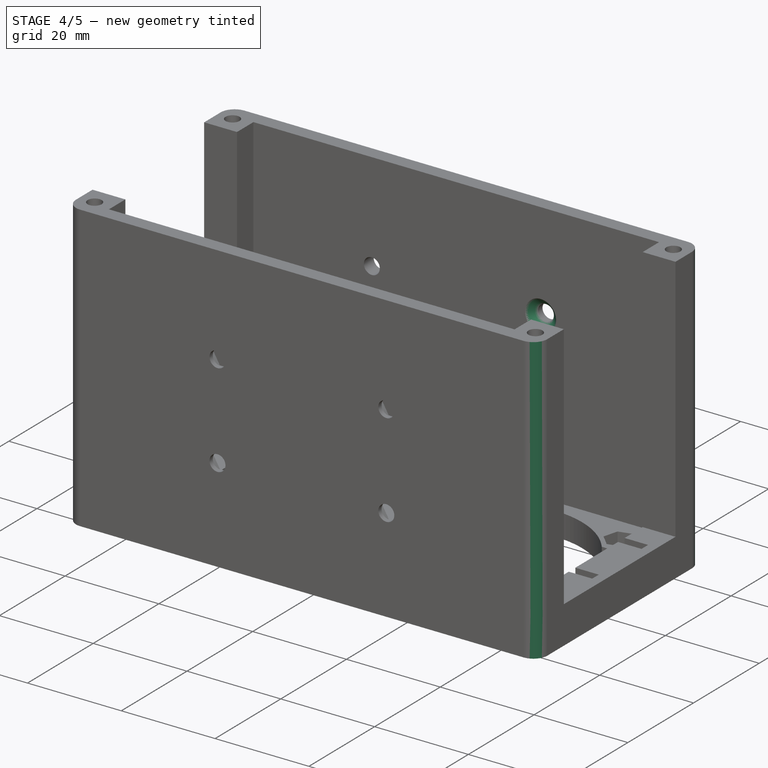
[diagram: stage 4 of 5 — iso view after this stage's code; geometry added in this stage tinted green]
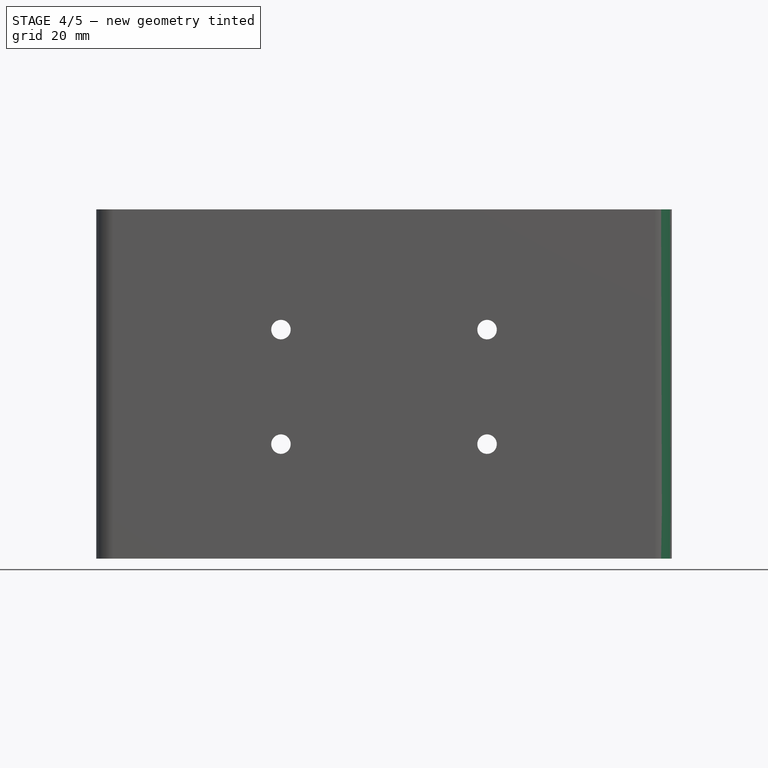
[diagram: stage 4 of 5 — front view after this stage's code; geometry added in this stage tinted green]
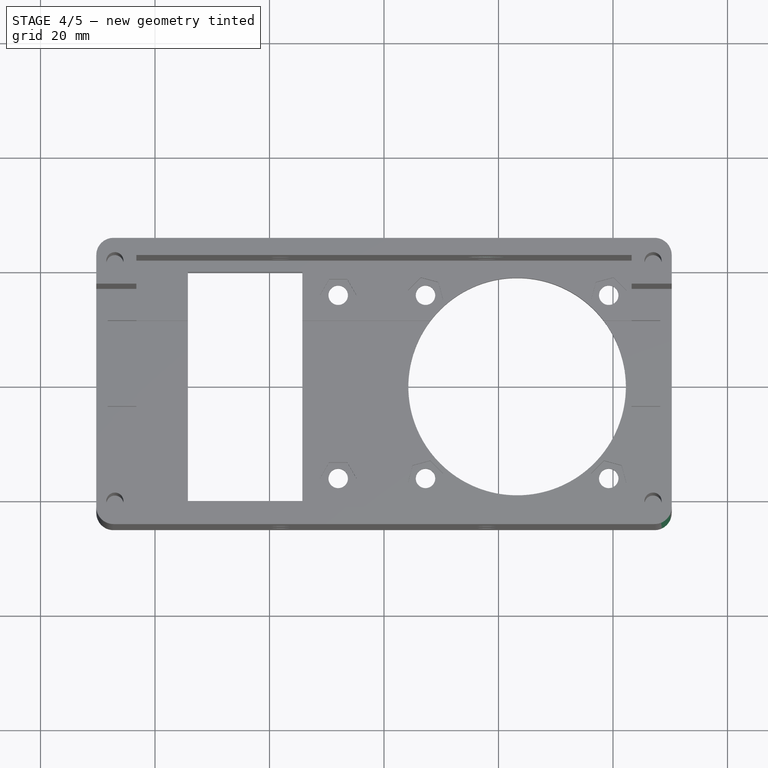
[diagram: stage 4 of 5 — top view after this stage's code; geometry added in this stage tinted green]
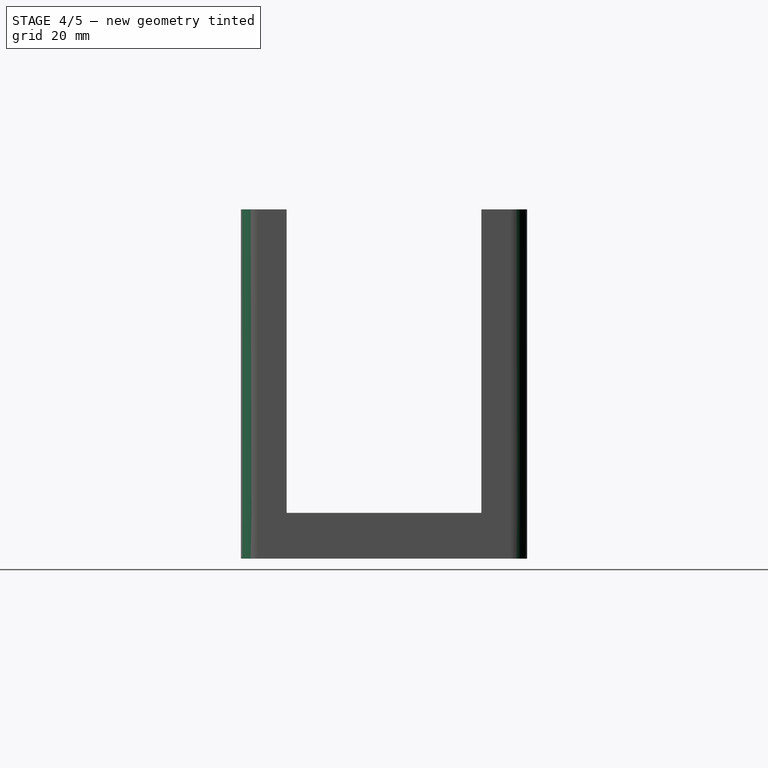
[diagram: stage 4 of 5 — right view after this stage's code; geometry added in this stage tinted green]
FEATURE [PartDesign::Fillet] Fillet002
  Base = -> Fillet001 [Edge115]
  Radius = 3
FEATURE [PartDesign::Fillet] Fillet003
  Base = -> Fillet002 [Edge106]
  Radius = 3
FEATURE [PartDesign::Chamfer] Chamfer
  Base = -> Fillet003 [Edge303]
  Size = 1.6
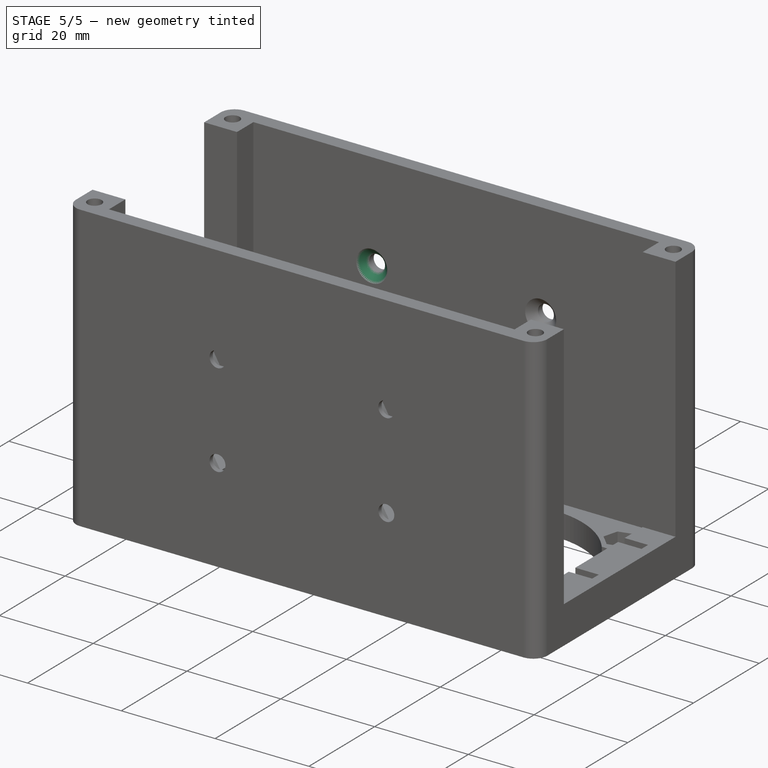
[diagram: stage 5 of 5 — iso view after this stage's code; geometry added in this stage tinted green]
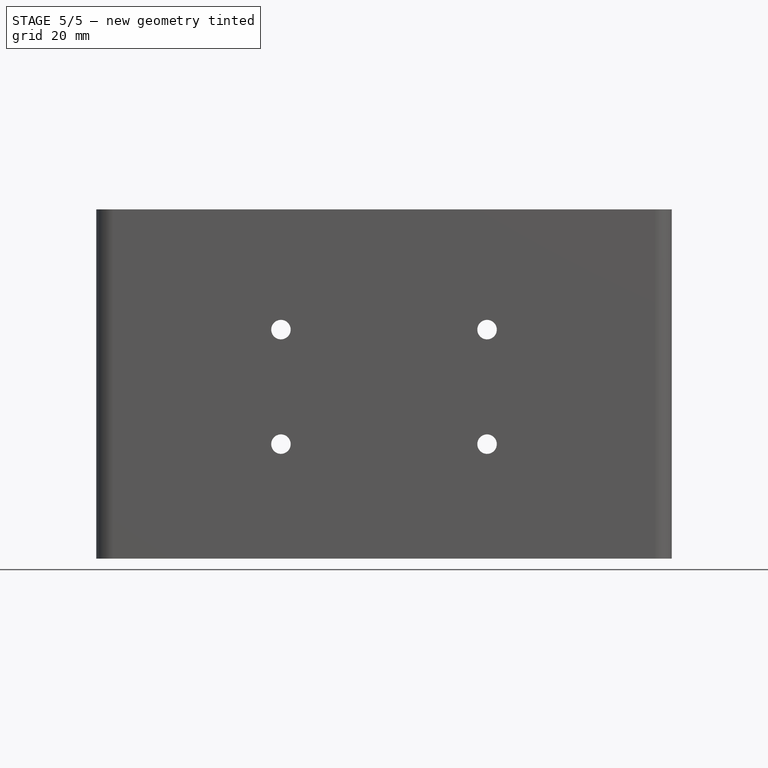
[diagram: stage 5 of 5 — front view after this stage's code; geometry added in this stage tinted green]
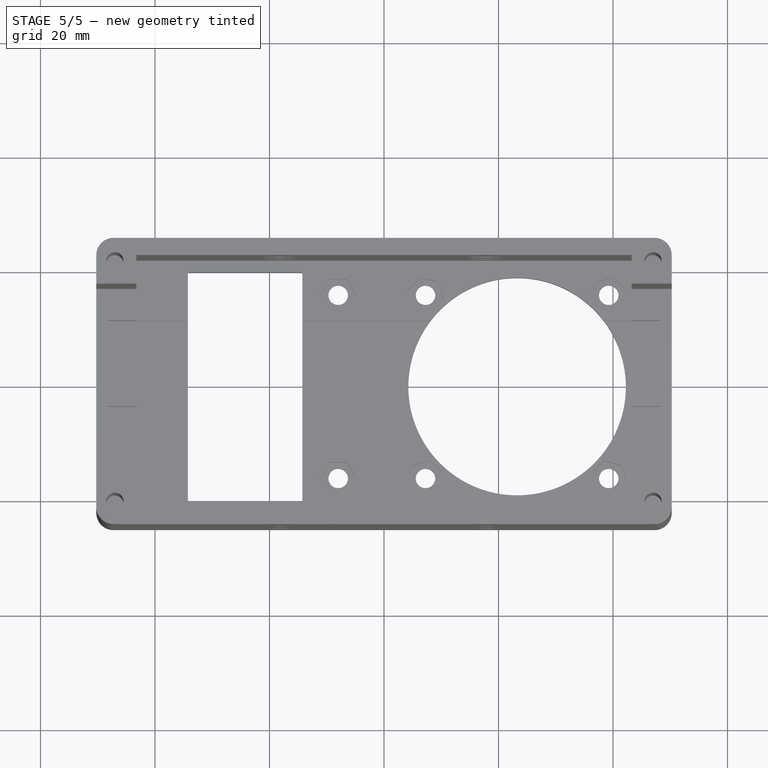
[diagram: stage 5 of 5 — top view after this stage's code; geometry added in this stage tinted green]
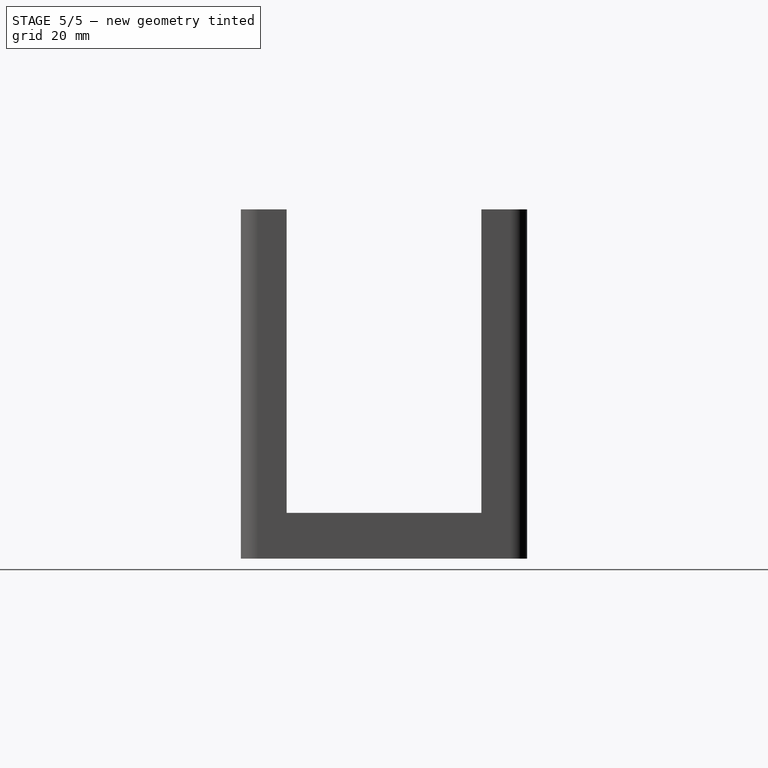
[diagram: stage 5 of 5 — right view after this stage's code; geometry added in this stage tinted green]
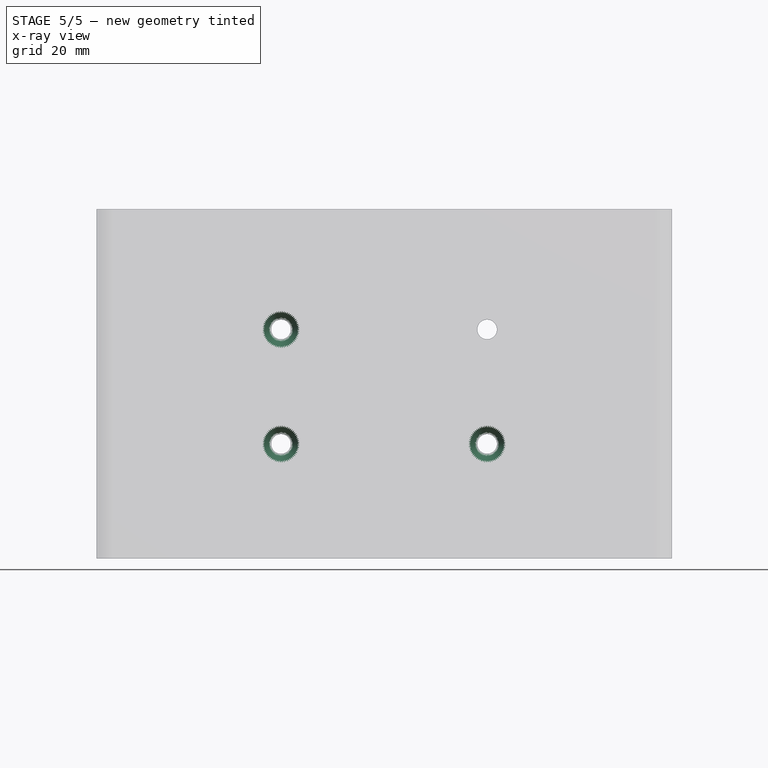
[diagram: stage 5 of 5 — x-ray composite at the front view; earlier geometry ghosted, this stage's added geometry solid]
FEATURE [PartDesign::Chamfer] Chamfer001
  Base = -> Chamfer [Edge17]
  Size = 1.6
FEATURE [PartDesign::Chamfer] Chamfer002
  Base = -> Chamfer001 [Edge8]
  Size = 1.6
FEATURE [PartDesign::Chamfer] Chamfer003
  Base = -> Chamfer002 [Edge8]
  Size = 1.6
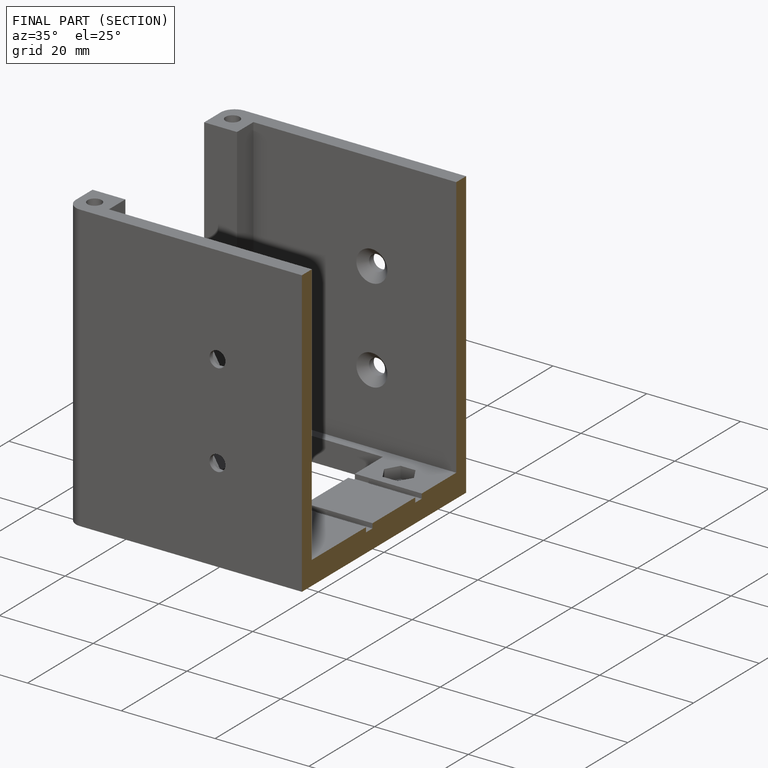
[diagram: finished part — half-section view (interior)]
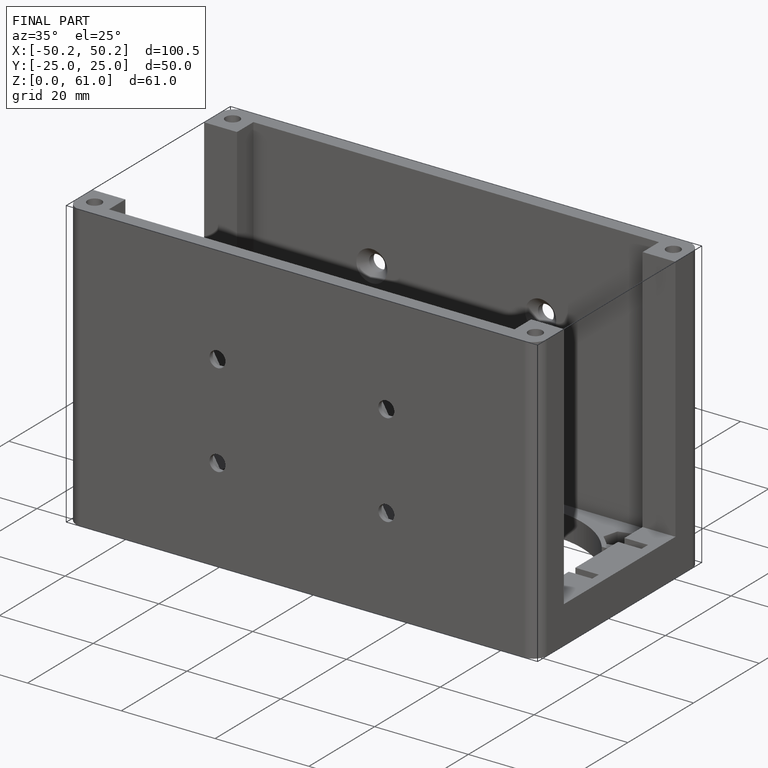
[diagram: finished part — iso view with bounding-box wireframe]
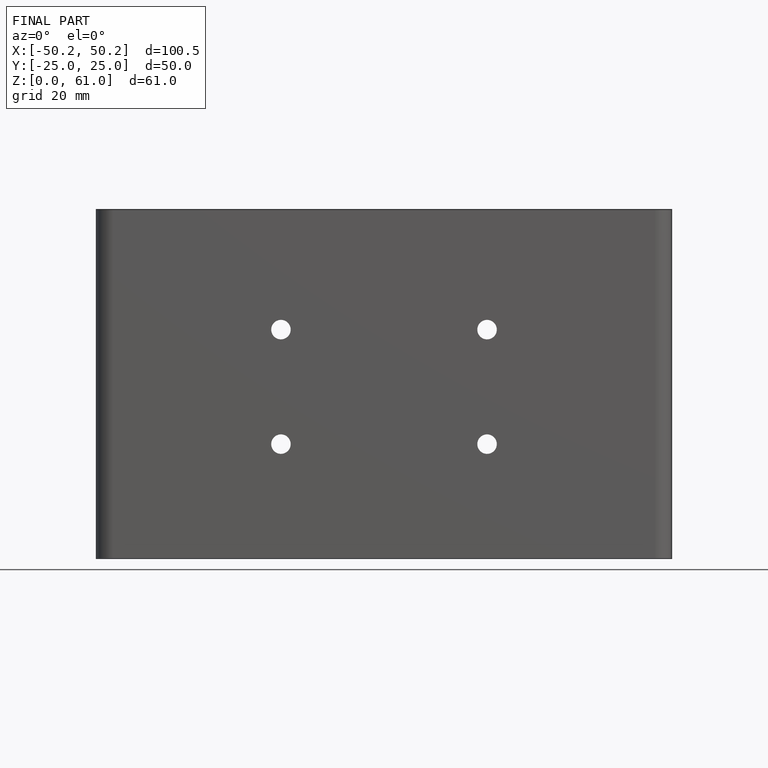
[diagram: finished part — front view with bounding-box wireframe]
